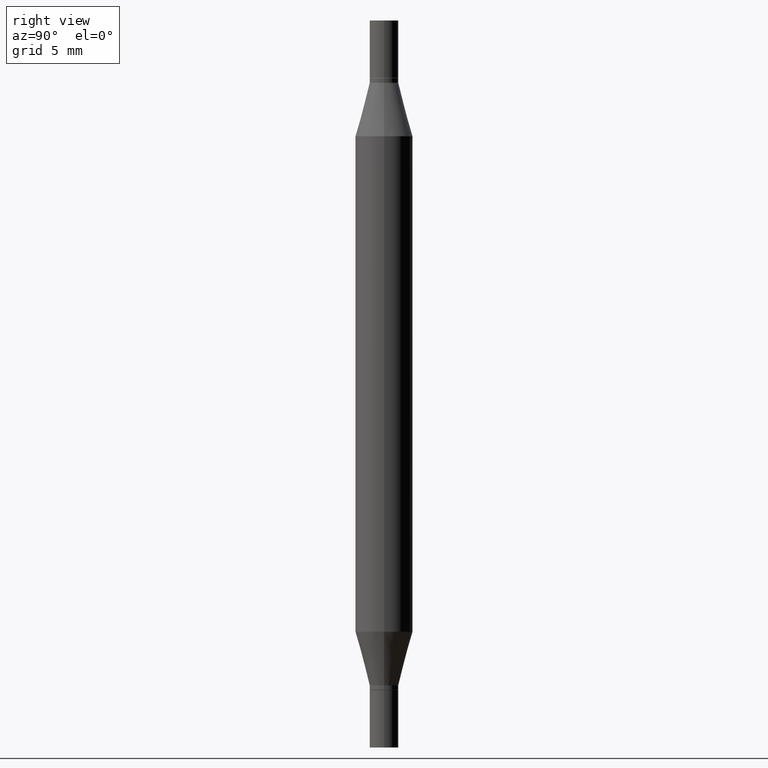
[diagram: clean part render]
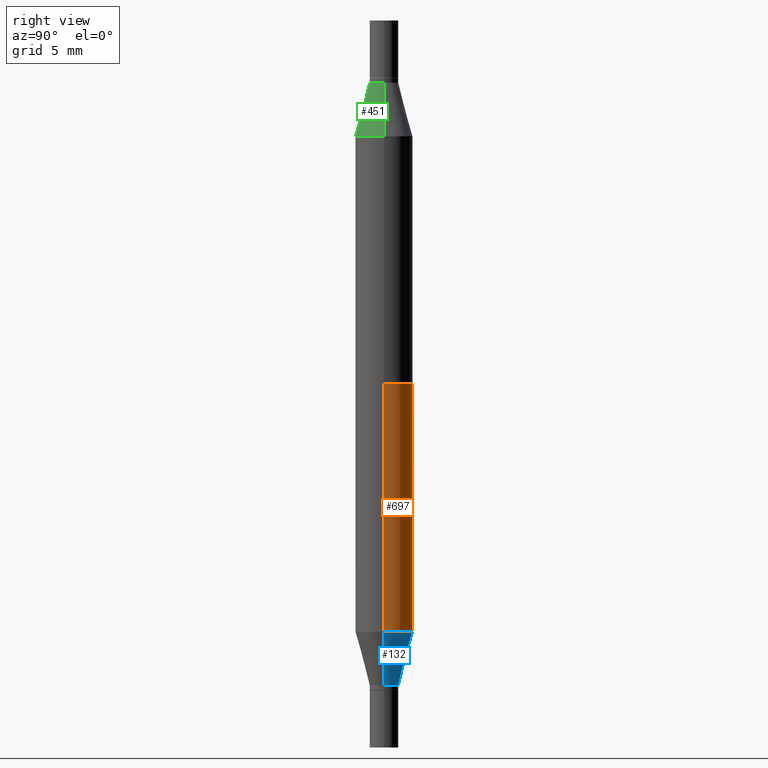
[diagram: same view with three faces highlighted in distinct colors, each labeled with its STEP entity id]
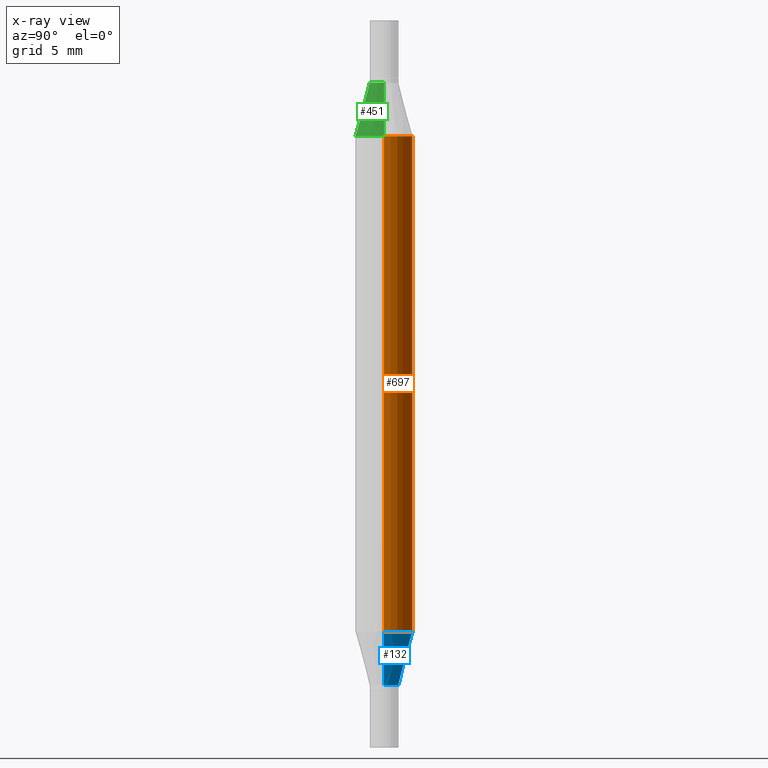
[diagram: x-ray of the same camera — body ghosted, the three highlighted faces saturated]
A machine part, right view with three faces highlighted in distinct colors.
The next image is the same camera in x-ray (body ghosted, the three faces saturated) — at least one of them is partly hidden behind the body in this view.
Their STEP definitions:

[orange] entity #697 — the highlighted cylindrical surface (edge-blend (fillet) strip) has radius 1.4999 mm, axis along (-0, -0, -1).
#15 = VECTOR ( 'NONE', #630, 39.37007874015748143 ) ;
#78 = CARTESIAN_POINT ( 'NONE',  ( 0.05904999999999999832, -4.804643186156564878E-15, -1.258004501176717804 ) ) ;
#122 = DIRECTION ( 'NONE',  ( 1.000000000000000000, -6.982962677686273021E-15, 0.000000000000000000 ) ) ;
#145 = ORIENTED_EDGE ( 'NONE', *, *, #339, .T. ) ;
#182 = VERTEX_POINT ( 'NONE', #673 ) ;
#184 = EDGE_CURVE ( 'NONE', #934, #674, #767, .T. ) ;
#194 = VECTOR ( 'NONE', #546, 39.37007874015748143 ) ;
#195 = LINE ( 'NONE', #409, #15 ) ;
#245 = DIRECTION ( 'NONE',  ( -2.445468806185136597E-29, 3.491481338843145583E-15, 1.000000000000000000 ) ) ;
#261 = LINE ( 'NONE', #709, #194 ) ;
#310 = DIRECTION ( 'NONE',  ( 2.445468806185136597E-29, 3.491805094961124077E-15, 1.000000000000000000 ) ) ;
#311 = EDGE_CURVE ( 'NONE', #674, #182, #195, .T. ) ;
#326 = ORIENTED_EDGE ( 'NONE', *, *, #311, .F. ) ;
#335 = DIRECTION ( 'NONE',  ( -2.445468806185136597E-29, -3.491805094961124077E-15, -1.000000000000000000 ) ) ;
#339 = EDGE_CURVE ( 'NONE', #934, #553, #261, .T. ) ;
#341 = CARTESIAN_POINT ( 'NONE',  ( -0.05904999999999999832, -4.260284833459836245E-16, -0.2380954988232820146 ) ) ;
#409 = CARTESIAN_POINT ( 'NONE',  ( -0.05905000000000000526, -4.818735010038875060E-15, -1.496099999999999985 ) ) ;
#501 = AXIS2_PLACEMENT_3D ( 'NONE', #706, #335, #570 ) ;
#528 = CARTESIAN_POINT ( 'NONE',  ( 3.076410765668156654E-29, -8.311408901143919011E-16, -0.2380954988232820146 ) ) ;
#529 = AXIS2_PLACEMENT_3D ( 'NONE', #528, #310, #683 ) ;
#546 = DIRECTION ( 'NONE',  ( -2.445468806185136877E-29, -3.491805094961123683E-15, -1.000000000000000000 ) ) ;
#553 = VERTEX_POINT ( 'NONE', #78 ) ;
#570 = DIRECTION ( 'NONE',  ( 1.000000000000000000, -6.982962677686272233E-15, 0.000000000000000000 ) ) ;
#614 = CARTESIAN_POINT ( 'NONE',  ( 0.05904999999999999832, -1.243484836231766624E-15, -0.2380954988232820146 ) ) ;
#630 = DIRECTION ( 'NONE',  ( -2.445468806185136877E-29, -3.491805094961123683E-15, -1.000000000000000000 ) ) ;
#656 = EDGE_LOOP ( 'NONE', ( #326, #856, #145, #871 ) ) ;
#673 = CARTESIAN_POINT ( 'NONE',  ( -0.05904999999999999832, -2.206690208753205272E-15, -1.258004501176717804 ) ) ;
#674 = VERTEX_POINT ( 'NONE', #341 ) ;
#683 = DIRECTION ( 'NONE',  ( 1.000000000000000000, -6.982962677686265133E-15, 0.000000000000000000 ) ) ;
#695 = CARTESIAN_POINT ( 'NONE',  ( 3.076410765668156654E-29, -4.392299240039190746E-15, -1.258004501176717804 ) ) ;
#697 = ADVANCED_FACE ( 'NONE', ( #935 ), #930, .T. ) ;
#706 = CARTESIAN_POINT ( 'NONE',  ( 0.000000000000000000, -5.223847416807283040E-15, -1.496099999999999985 ) ) ;
#709 = CARTESIAN_POINT ( 'NONE',  ( 0.05905000000000000526, -5.636191362924657961E-15, -1.496099999999999985 ) ) ;
#767 = CIRCLE ( 'NONE', #529, 0.05904999999999999832 ) ;
#822 = EDGE_CURVE ( 'NONE', #553, #182, #948, .T. ) ;
#856 = ORIENTED_EDGE ( 'NONE', *, *, #184, .F. ) ;
#871 = ORIENTED_EDGE ( 'NONE', *, *, #822, .T. ) ;
#928 = AXIS2_PLACEMENT_3D ( 'NONE', #695, #245, #122 ) ;
#930 = CYLINDRICAL_SURFACE ( 'NONE', #501, 0.05905000000000000526 ) ;
#934 = VERTEX_POINT ( 'NONE', #614 ) ;
#935 = FACE_OUTER_BOUND ( 'NONE', #656, .T. ) ;
#948 = CIRCLE ( 'NONE', #928, 0.05904999999999999832 ) ;

[blue] entity #132 — the highlighted conical surface has half-angle 15 deg.
#7 = DIRECTION ( 'NONE',  ( 1.000000000000000000, -6.982962677686281699E-15, 0.000000000000000000 ) ) ;
#43 = DIRECTION ( 'NONE',  ( 1.000000000000000000, -6.982962677686281699E-15, 0.000000000000000000 ) ) ;
#78 = CARTESIAN_POINT ( 'NONE',  ( 0.05904999999999999832, -4.804643186156564878E-15, -1.258004501176717804 ) ) ;
#88 = AXIS2_PLACEMENT_3D ( 'NONE', #672, #97, #43 ) ;
#94 = VERTEX_POINT ( 'NONE', #370 ) ;
#97 = DIRECTION ( 'NONE',  ( -2.445468806185136597E-29, 3.491481338843145583E-15, 1.000000000000000000 ) ) ;
#98 = CARTESIAN_POINT ( 'NONE',  ( -0.02954999999999991661, -4.566730241254198034E-15, -1.368099999999999872 ) ) ;
#105 = CARTESIAN_POINT ( 'NONE',  ( 3.345645873741884627E-29, -4.776695619671307391E-15, -1.368099999999999872 ) ) ;
#122 = DIRECTION ( 'NONE',  ( 1.000000000000000000, -6.982962677686273021E-15, 0.000000000000000000 ) ) ;
#128 = CARTESIAN_POINT ( 'NONE',  ( 0.02954999999999991661, -4.983042166796936213E-15, -1.368099999999999872 ) ) ;
#132 = ADVANCED_FACE ( 'NONE', ( #231 ), #294, .T. ) ;
#165 = VERTEX_POINT ( 'NONE', #839 ) ;
#182 = VERTEX_POINT ( 'NONE', #673 ) ;
#187 = EDGE_CURVE ( 'NONE', #165, #182, #247, .T. ) ;
#221 = VECTOR ( 'NONE', #756, 39.37007874015747433 ) ;
#231 = FACE_OUTER_BOUND ( 'NONE', #367, .T. ) ;
#245 = DIRECTION ( 'NONE',  ( -2.445468806185136597E-29, 3.491481338843145583E-15, 1.000000000000000000 ) ) ;
#247 = LINE ( 'NONE', #98, #221 ) ;
#266 = CIRCLE ( 'NONE', #88, 0.02954999999999991661 ) ;
#294 = CONICAL_SURFACE ( 'NONE', #732, 0.02954999999999991661, 0.2617993877991500740 ) ;
#334 = ORIENTED_EDGE ( 'NONE', *, *, #381, .T. ) ;
#347 = DIRECTION ( 'NONE',  ( 0.2588190451025213501, 1.565188264969621968E-15, 0.9659258262890682012 ) ) ;
#367 = EDGE_LOOP ( 'NONE', ( #334, #794, #836, #600 ) ) ;
#370 = CARTESIAN_POINT ( 'NONE',  ( 0.02954999999999991661, -4.983042166796936213E-15, -1.368099999999999872 ) ) ;
#381 = EDGE_CURVE ( 'NONE', #94, #165, #266, .T. ) ;
#494 = LINE ( 'NONE', #128, #961 ) ;
#553 = VERTEX_POINT ( 'NONE', #78 ) ;
#600 = ORIENTED_EDGE ( 'NONE', *, *, #956, .F. ) ;
#608 = DIRECTION ( 'NONE',  ( -2.445468806185136597E-29, 3.491481338843145583E-15, 1.000000000000000000 ) ) ;
#672 = CARTESIAN_POINT ( 'NONE',  ( 3.345645873741884627E-29, -4.776695619671307391E-15, -1.368099999999999872 ) ) ;
#673 = CARTESIAN_POINT ( 'NONE',  ( -0.05904999999999999832, -2.206690208753205272E-15, -1.258004501176717804 ) ) ;
#695 = CARTESIAN_POINT ( 'NONE',  ( 3.076410765668156654E-29, -4.392299240039190746E-15, -1.258004501176717804 ) ) ;
#732 = AXIS2_PLACEMENT_3D ( 'NONE', #105, #608, #7 ) ;
#756 = DIRECTION ( 'NONE',  ( -0.2588190451025213501, 5.211531920934551042E-15, 0.9659258262890682012 ) ) ;
#794 = ORIENTED_EDGE ( 'NONE', *, *, #187, .T. ) ;
#822 = EDGE_CURVE ( 'NONE', #553, #182, #948, .T. ) ;
#836 = ORIENTED_EDGE ( 'NONE', *, *, #822, .F. ) ;
#839 = CARTESIAN_POINT ( 'NONE',  ( -0.02954999999999991661, -4.583140203546760956E-15, -1.368099999999999872 ) ) ;
#928 = AXIS2_PLACEMENT_3D ( 'NONE', #695, #245, #122 ) ;
#948 = CIRCLE ( 'NONE', #928, 0.05904999999999999832 ) ;
#956 = EDGE_CURVE ( 'NONE', #94, #553, #494, .T. ) ;
#961 = VECTOR ( 'NONE', #347, 39.37007874015747433 ) ;

[green] entity #451 — the highlighted conical surface has half-angle 15 deg.
#39 = DIRECTION ( 'NONE',  ( 1.000000000000000000, -6.982962677686265133E-15, 0.000000000000000000 ) ) ;
#52 = VECTOR ( 'NONE', #455, 39.37007874015747433 ) ;
#57 = ORIENTED_EDGE ( 'NONE', *, *, #847, .T. ) ;
#75 = CARTESIAN_POINT ( 'NONE',  ( 3.345645873741884627E-29, -4.467088663909703532E-16, -0.1280000000000001137 ) ) ;
#106 = DIRECTION ( 'NONE',  ( 2.445468806185136597E-29, 3.491805094961124077E-15, 1.000000000000000000 ) ) ;
#119 = CIRCLE ( 'NONE', #239, 0.02954999999999991661 ) ;
#125 = CARTESIAN_POINT ( 'NONE',  ( 3.345645873741884627E-29, -4.467088663909703532E-16, -0.1280000000000001137 ) ) ;
#203 = VECTOR ( 'NONE', #387, 39.37007874015747433 ) ;
#239 = AXIS2_PLACEMENT_3D ( 'NONE', #125, #625, #863 ) ;
#242 = ORIENTED_EDGE ( 'NONE', *, *, #253, .T. ) ;
#253 = EDGE_CURVE ( 'NONE', #580, #558, #302, .T. ) ;
#297 = ORIENTED_EDGE ( 'NONE', *, *, #328, .F. ) ;
#302 = LINE ( 'NONE', #911, #203 ) ;
#328 = EDGE_CURVE ( 'NONE', #580, #411, #119, .T. ) ;
#386 = CARTESIAN_POINT ( 'NONE',  ( 0.05904999999999999832, -1.243484836231766624E-15, -0.2380954988232820146 ) ) ;
#387 = DIRECTION ( 'NONE',  ( -0.2588190451025213501, -1.597197180879714326E-15, -0.9659258262890682012 ) ) ;
#402 = CARTESIAN_POINT ( 'NONE',  ( 3.076410765668156654E-29, -8.311408901143919011E-16, -0.2380954988232820146 ) ) ;
#411 = VERTEX_POINT ( 'NONE', #931 ) ;
#451 = ADVANCED_FACE ( 'NONE', ( #962 ), #515, .T. ) ;
#455 = DIRECTION ( 'NONE',  ( 0.2588190451025213501, -5.180148453816008779E-15, -0.9659258262890682012 ) ) ;
#511 = VERTEX_POINT ( 'NONE', #386 ) ;
#515 = CONICAL_SURFACE ( 'NONE', #749, 0.02954999999999991661, 0.2617993877991500740 ) ;
#521 = LINE ( 'NONE', #826, #52 ) ;
#558 = VERTEX_POINT ( 'NONE', #897 ) ;
#580 = VERTEX_POINT ( 'NONE', #901 ) ;
#581 = DIRECTION ( 'NONE',  ( 1.000000000000000000, -6.982962677686265133E-15, 0.000000000000000000 ) ) ;
#583 = ORIENTED_EDGE ( 'NONE', *, *, #607, .F. ) ;
#607 = EDGE_CURVE ( 'NONE', #411, #511, #521, .T. ) ;
#625 = DIRECTION ( 'NONE',  ( 2.445468806185136597E-29, 3.491805094961124077E-15, 1.000000000000000000 ) ) ;
#657 = DIRECTION ( 'NONE',  ( -2.445468806185136597E-29, -3.491805094961124077E-15, -1.000000000000000000 ) ) ;
#731 = EDGE_LOOP ( 'NONE', ( #297, #242, #57, #583 ) ) ;
#749 = AXIS2_PLACEMENT_3D ( 'NONE', #75, #657, #581 ) ;
#800 = AXIS2_PLACEMENT_3D ( 'NONE', #402, #106, #39 ) ;
#826 = CARTESIAN_POINT ( 'NONE',  ( 0.02954999999999991661, -6.530554135165988789E-16, -0.1280000000000001137 ) ) ;
#847 = EDGE_CURVE ( 'NONE', #558, #511, #878, .T. ) ;
#863 = DIRECTION ( 'NONE',  ( 1.000000000000000000, -6.982962677686265133E-15, 0.000000000000000000 ) ) ;
#878 = CIRCLE ( 'NONE', #800, 0.05904999999999999832 ) ;
#897 = CARTESIAN_POINT ( 'NONE',  ( -0.05904999999999999832, -4.260284833459836245E-16, -0.2380954988232820146 ) ) ;
#901 = CARTESIAN_POINT ( 'NONE',  ( -0.02954999999999991661, -2.275696666105042854E-16, -0.1280000000000001137 ) ) ;
#911 = CARTESIAN_POINT ( 'NONE',  ( -0.02954999999999991661, -2.439811505568221169E-16, -0.1280000000000001137 ) ) ;
#931 = CARTESIAN_POINT ( 'NONE',  ( 0.02954999999999991661, -6.530554135165988789E-16, -0.1280000000000001137 ) ) ;
#962 = FACE_OUTER_BOUND ( 'NONE', #731, .T. ) ;